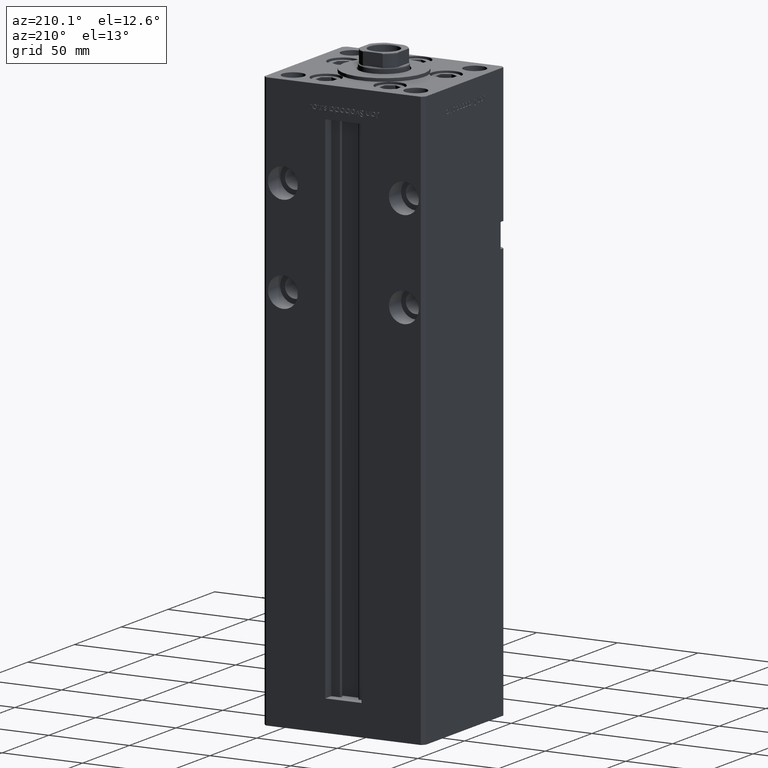
[diagram: clean part render]
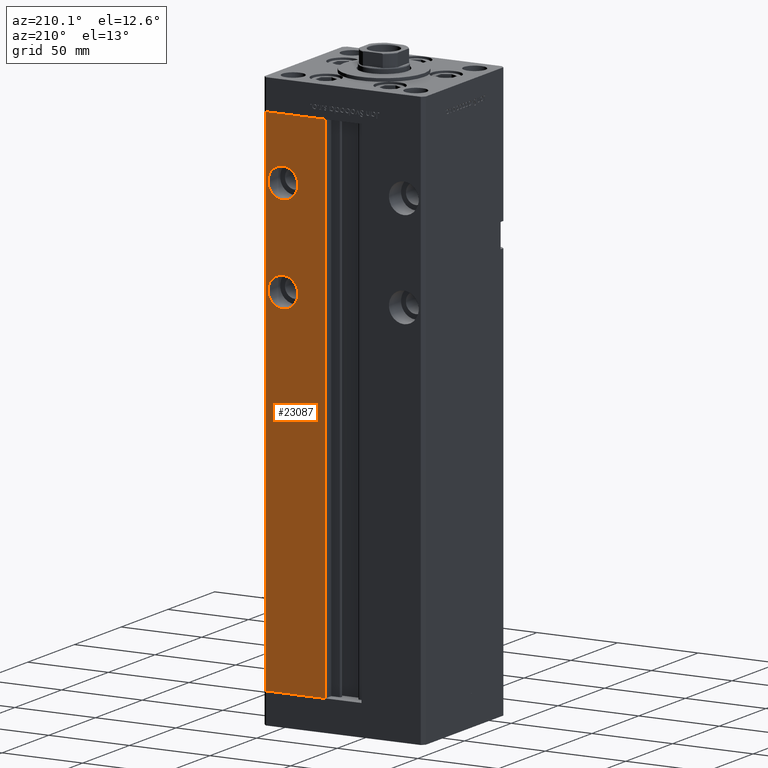
[diagram: same view with one face highlighted and labeled with its STEP entity id]
A machine part, auxiliary view. The second image highlights one B-rep face of the part: STEP entity #23087.
In plain terms, the highlighted planar face has unit normal (0, -1, 0).
Its self-contained STEP definition (entity closure, byte-faithful):
#148 = VERTEX_POINT ( 'NONE', #47204 ) ;
#507 = AXIS2_PLACEMENT_3D ( 'NONE', #52268, #20244, #24276 ) ;
#585 = CARTESIAN_POINT ( 'NONE',  ( 11.24999999999998934, 43.50000000000000000, 318.5000000000000000 ) ) ;
#1110 = CARTESIAN_POINT ( 'NONE',  ( 48.00000000000000711, 43.50000000000000000, 318.5000000000000000 ) ) ;
#2112 = VECTOR ( 'NONE', #21049, 1000.000000000000000 ) ;
#2769 = EDGE_CURVE ( 'NONE', #12531, #18277, #25574, .T. ) ;
#3092 = EDGE_CURVE ( 'NONE', #19762, #14304, #30072, .T. ) ;
#3282 = DIRECTION ( 'NONE',  ( 0.000000000000000000, 0.000000000000000000, -1.000000000000000000 ) ) ;
#3533 = CARTESIAN_POINT ( 'NONE',  ( 37.50000000000000000, 43.50000000000000000, 220.5000000000000000 ) ) ;
#3732 = VECTOR ( 'NONE', #17497, 1000.000000000000000 ) ;
#5338 = ORIENTED_EDGE ( 'NONE', *, *, #17378, .F. ) ;
#5562 = DIRECTION ( 'NONE',  ( 0.000000000000000000, -1.000000000000000000, 0.000000000000000000 ) ) ;
#7506 = LINE ( 'NONE', #23880, #26266 ) ;
#7571 = DIRECTION ( 'NONE',  ( 0.000000000000000000, 1.000000000000000000, -0.000000000000000000 ) ) ;
#8584 = CARTESIAN_POINT ( 'NONE',  ( 11.24999999999999645, 43.50000000000000000, 0.000000000000000000 ) ) ;
#8648 = AXIS2_PLACEMENT_3D ( 'NONE', #3533, #7571, #3282 ) ;
#9016 = ORIENTED_EDGE ( 'NONE', *, *, #16362, .F. ) ;
#9662 = DIRECTION ( 'NONE',  ( 0.000000000000000000, 1.000000000000000000, 0.000000000000000000 ) ) ;
#9933 = DIRECTION ( 'NONE',  ( 0.000000000000000000, 0.000000000000000000, 1.000000000000000000 ) ) ;
#10449 = EDGE_CURVE ( 'NONE', #14304, #12531, #50085, .T. ) ;
#11758 = CARTESIAN_POINT ( 'NONE',  ( 37.50000000000000000, 43.50000000000000000, 289.7499999999999432 ) ) ;
#12531 = VERTEX_POINT ( 'NONE', #15918 ) ;
#12637 = CARTESIAN_POINT ( 'NONE',  ( 37.50000000000000000, 43.50000000000000000, 280.5000000000000000 ) ) ;
#14304 = VERTEX_POINT ( 'NONE', #585 ) ;
#15391 = EDGE_CURVE ( 'NONE', #35141, #35068, #21947, .T. ) ;
#15533 = EDGE_CURVE ( 'NONE', #18277, #19762, #7506, .T. ) ;
#15918 = CARTESIAN_POINT ( 'NONE',  ( 48.00000000000000711, 43.50000000000000000, 318.5000000000000000 ) ) ;
#16024 = CIRCLE ( 'NONE', #25465, 9.249999999999980460 ) ;
#16362 = EDGE_CURVE ( 'NONE', #28744, #148, #40892, .T. ) ;
#17038 = EDGE_LOOP ( 'NONE', ( #26741, #37339, #50314, #27957 ) ) ;
#17378 = EDGE_CURVE ( 'NONE', #35068, #35141, #16024, .T. ) ;
#17497 = DIRECTION ( 'NONE',  ( -0.000000000000000000, -0.000000000000000000, -1.000000000000000000 ) ) ;
#18277 = VERTEX_POINT ( 'NONE', #41771 ) ;
#18745 = CARTESIAN_POINT ( 'NONE',  ( 37.50000000000000000, 43.50000000000000000, 271.2500000000000000 ) ) ;
#19762 = VERTEX_POINT ( 'NONE', #31344 ) ;
#20244 = DIRECTION ( 'NONE',  ( 0.000000000000000000, 1.000000000000000000, -0.000000000000000000 ) ) ;
#21049 = DIRECTION ( 'NONE',  ( 1.000000000000000000, 0.000000000000000000, 0.000000000000000000 ) ) ;
#21834 = CARTESIAN_POINT ( 'NONE',  ( -11.24999999999999645, 43.50000000000000000, 318.5000000000000000 ) ) ;
#21947 = CIRCLE ( 'NONE', #32312, 9.249999999999980460 ) ;
#23087 = ADVANCED_FACE ( 'NONE', ( #38886, #50442, #30550 ), #26505, .F. ) ;
#23880 = CARTESIAN_POINT ( 'NONE',  ( -11.24999999999999645, 43.50000000000000000, 0.000000000000000000 ) ) ;
#24276 = DIRECTION ( 'NONE',  ( 0.000000000000000000, 0.000000000000000000, -1.000000000000000000 ) ) ;
#25465 = AXIS2_PLACEMENT_3D ( 'NONE', #28061, #44481, #52276 ) ;
#25574 = LINE ( 'NONE', #1110, #3732 ) ;
#26266 = VECTOR ( 'NONE', #28969, 1000.000000000000000 ) ;
#26505 = PLANE ( 'NONE',  #42320 ) ;
#26741 = ORIENTED_EDGE ( 'NONE', *, *, #15533, .T. ) ;
#27957 = ORIENTED_EDGE ( 'NONE', *, *, #2769, .T. ) ;
#28061 = CARTESIAN_POINT ( 'NONE',  ( 37.50000000000000000, 43.50000000000000000, 280.5000000000000000 ) ) ;
#28744 = VERTEX_POINT ( 'NONE', #52860 ) ;
#28969 = DIRECTION ( 'NONE',  ( -1.000000000000000000, 0.000000000000000000, 0.000000000000000000 ) ) ;
#30072 = LINE ( 'NONE', #8584, #32883 ) ;
#30550 = FACE_OUTER_BOUND ( 'NONE', #17038, .T. ) ;
#31007 = CIRCLE ( 'NONE', #8648, 9.250000000000008882 ) ;
#31344 = CARTESIAN_POINT ( 'NONE',  ( 11.24999999999999645, 43.50000000000000000, 0.000000000000000000 ) ) ;
#32312 = AXIS2_PLACEMENT_3D ( 'NONE', #12637, #9662, #9933 ) ;
#32355 = ORIENTED_EDGE ( 'NONE', *, *, #47019, .F. ) ;
#32883 = VECTOR ( 'NONE', #46476, 1000.000000000000000 ) ;
#34317 = DIRECTION ( 'NONE',  ( 0.000000000000000000, -0.000000000000000000, -1.000000000000000000 ) ) ;
#35068 = VERTEX_POINT ( 'NONE', #18745 ) ;
#35141 = VERTEX_POINT ( 'NONE', #11758 ) ;
#37339 = ORIENTED_EDGE ( 'NONE', *, *, #3092, .T. ) ;
#38886 = FACE_BOUND ( 'NONE', #41908, .T. ) ;
#40892 = CIRCLE ( 'NONE', #507, 9.250000000000008882 ) ;
#41771 = CARTESIAN_POINT ( 'NONE',  ( 48.00000000000000711, 43.50000000000000000, 0.000000000000000000 ) ) ;
#41908 = EDGE_LOOP ( 'NONE', ( #32355, #9016 ) ) ;
#42320 = AXIS2_PLACEMENT_3D ( 'NONE', #42387, #5562, #34317 ) ;
#42387 = CARTESIAN_POINT ( 'NONE',  ( -11.24999999999999645, 43.50000000000000000, 318.5000000000000000 ) ) ;
#44481 = DIRECTION ( 'NONE',  ( 0.000000000000000000, 1.000000000000000000, 0.000000000000000000 ) ) ;
#45248 = ORIENTED_EDGE ( 'NONE', *, *, #15391, .F. ) ;
#46476 = DIRECTION ( 'NONE',  ( -0.000000000000000000, -0.000000000000000000, 1.000000000000000000 ) ) ;
#47019 = EDGE_CURVE ( 'NONE', #148, #28744, #31007, .T. ) ;
#47204 = CARTESIAN_POINT ( 'NONE',  ( 37.50000000000000000, 43.50000000000000000, 229.7500000000000000 ) ) ;
#48133 = EDGE_LOOP ( 'NONE', ( #45248, #5338 ) ) ;
#50085 = LINE ( 'NONE', #21834, #2112 ) ;
#50314 = ORIENTED_EDGE ( 'NONE', *, *, #10449, .T. ) ;
#50442 = FACE_BOUND ( 'NONE', #48133, .T. ) ;
#52268 = CARTESIAN_POINT ( 'NONE',  ( 37.50000000000000000, 43.50000000000000000, 220.5000000000000000 ) ) ;
#52276 = DIRECTION ( 'NONE',  ( 0.000000000000000000, 0.000000000000000000, 1.000000000000000000 ) ) ;
#52860 = CARTESIAN_POINT ( 'NONE',  ( 37.50000000000000000, 43.50000000000000000, 211.2500000000000000 ) ) ;